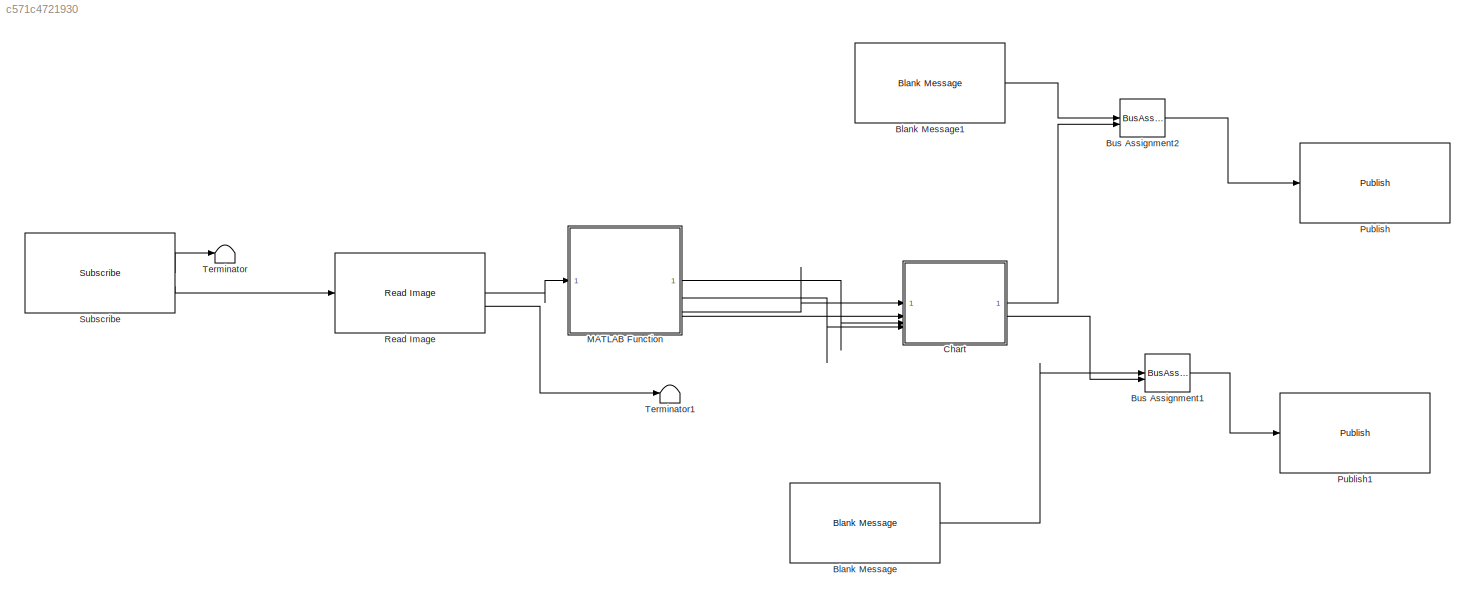
MODEL slx_c571c4721930
KIND model
CONFIG AbsTol = auto
CONFIG EnableMultiTasking = off
CONFIG FixedStep = auto
CONFIG MaxStep = auto
CONFIG MinStep = auto
CONFIG RelTol = 1e-3
CONFIG SampleTimeConstraint = Unconstrained
CONFIG SolverName = VariableStepAuto
CONFIG StartTime = 0.0
CONFIG StopTime = inf
BLOCK [Reference] Blank Message  REF=robotlib/Blank Message
  SourceBlock = robotlib/Blank Message
  SourceType = ROS Blank Message
BLOCK [Reference] Blank Message1  REF=robotlib/Blank Message
  SourceBlock = robotlib/Blank Message
  SourceType = ROS Blank Message
BLOCK [BusAssignment] Bus Assignment1
  AssignedSignals = Data
BLOCK [BusAssignment] Bus Assignment2
  AssignedSignals = Data
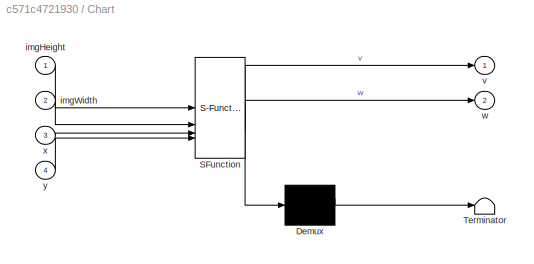
BLOCK [SubSystem] Chart
  ErrorFcn = Stateflow.Translate.translate
  PermitHierarchicalResolution = ExplicitOnly
  SFBlockType = Chart
  TreatAsAtomicUnit = on
BLOCK [Demux] Chart/ Demux 
  Outputs = 1
BLOCK [S-Function] Chart/ SFunction 
  EnableBusSupport = on
  FunctionName = sf_sfun
  PortCounts = [4 3]
  SFcnIsStateOwnerBlock = off
  SFunctionDeploymentMode = off
  Tag = Stateflow S-Function 3
BLOCK [Terminator] Chart/ Terminator 
BLOCK [Inport] Chart/imgHeight
BLOCK [Inport] Chart/imgWidth
  Port = 2
BLOCK [Outport] Chart/v
BLOCK [Outport] Chart/w
  Port = 2
BLOCK [Inport] Chart/x
  Port = 3
BLOCK [Inport] Chart/y
  Port = 4
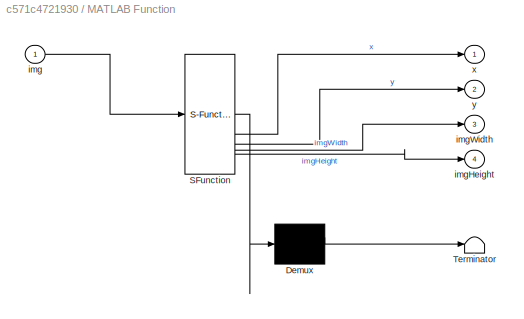
BLOCK [SubSystem] MATLAB Function
  ErrorFcn = Stateflow.Translate.translate
  PermitHierarchicalResolution = ExplicitOnly
  SFBlockType = MATLAB Function
  TreatAsAtomicUnit = on
BLOCK [Demux] MATLAB Function/ Demux 
  Outputs = 1
BLOCK [S-Function] MATLAB Function/ SFunction 
  EnableBusSupport = on
  FunctionName = sf_sfun
  PortCounts = [1 5]
  SFcnIsStateOwnerBlock = off
  SFunctionDeploymentMode = off
  Tag = Stateflow S-Function 2
BLOCK [Terminator] MATLAB Function/ Terminator 
BLOCK [Inport] MATLAB Function/img
BLOCK [Outport] MATLAB Function/imgHeight
  Port = 4
BLOCK [Outport] MATLAB Function/imgWidth
  Port = 3
BLOCK [Outport] MATLAB Function/x
BLOCK [Outport] MATLAB Function/y
  Port = 2
BLOCK [Reference] Publish  REF=robotlib/Publish
  SourceBlock = robotlib/Publish
  SourceType = ROS Publish
BLOCK [Reference] Publish1  REF=robotlib/Publish
  SourceBlock = robotlib/Publish
  SourceType = ROS Publish
BLOCK [Reference] Read Image  REF=robotlib/Read Image
  SourceBlock = robotlib/Read Image
  SourceType = ros.slros.internal.block.ReadImage
BLOCK [Reference] Subscribe  REF=robotlib/Subscribe
  SourceBlock = robotlib/Subscribe
  SourceType = ROS Subscribe
BLOCK [Terminator] Terminator
BLOCK [Terminator] Terminator1
LINE Blank Message1:1 -> Bus Assignment2:1
LINE Blank Message:1 -> Bus Assignment1:1
LINE Bus Assignment1:1 -> Publish1:1
LINE Bus Assignment2:1 -> Publish:1
LINE Chart:1 -> Bus Assignment2:2
LINE Chart:2 -> Bus Assignment1:2
LINE MATLAB Function:1 -> Chart:3
LINE MATLAB Function:2 -> Chart:4
LINE MATLAB Function:3 -> Chart:2
LINE MATLAB Function:4 -> Chart:1
LINE Read Image:1 -> MATLAB Function:1
LINE Read Image:2 -> Terminator1:1
LINE Subscribe:1 -> Terminator:1
LINE Subscribe:2 -> Read Image:1
CHART MATLAB Function states=1 transitions=1
  STATE_LABEL 'eML_blk_kernel()'
  STATE_LABEL 'SCRIPT:\nfunction [x, y, imgWidth, imgHeight] = detectBlob(img) \n    % Get the size of the image (height, width)\n    [imgHeight, imgWidth, ~] = size(img);\n\n    I = img;\n\n% Define thresholds for channel 1 based on histogram settings\n    channel1Min = 0.000;\n    channel1Max = 65.000;\n\n% Define thresholds for channel 2 based on histogram settings\n    channel2Min = 0.000;\n    channel2Max = 125.000;\n\n% ...<+957ch>'
CHART Chart states=4 transitions=4
  STATE_LABEL 'Tracking\nentry,during:\n  [v,  w] = calculateVelocity(x, y, imgWidth, imgHeight);\n'
  STATE_LABEL 'Waiting\nentry:\n  v = 0;\n  w = 0;\n'
  STATE_LABEL '[v, w] = calculateVelocity(x, y, imgWidth, imgHeight)'
  STATE_LABEL 'SCRIPT:\nfunction [v, w] = calculateVelocity(x, y, imgWidth, imgHeight)\n    % Call the external function headingCorrection.m\n    [v, w] = calcVel(x, y, imgWidth, imgHeight)\nend\n\n'
  STATE_LABEL 'Seeking\nentry:\n  v = 0;\n  w = 0.3;\n'
CHART  states=0 transitions=0
CHART  states=0 transitions=0
